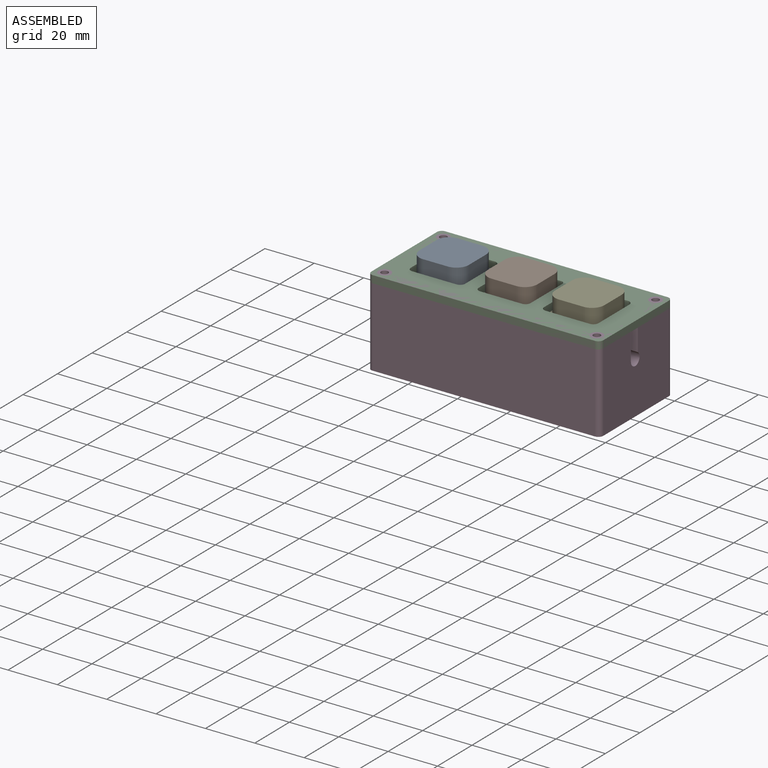
[diagram: assembled view]
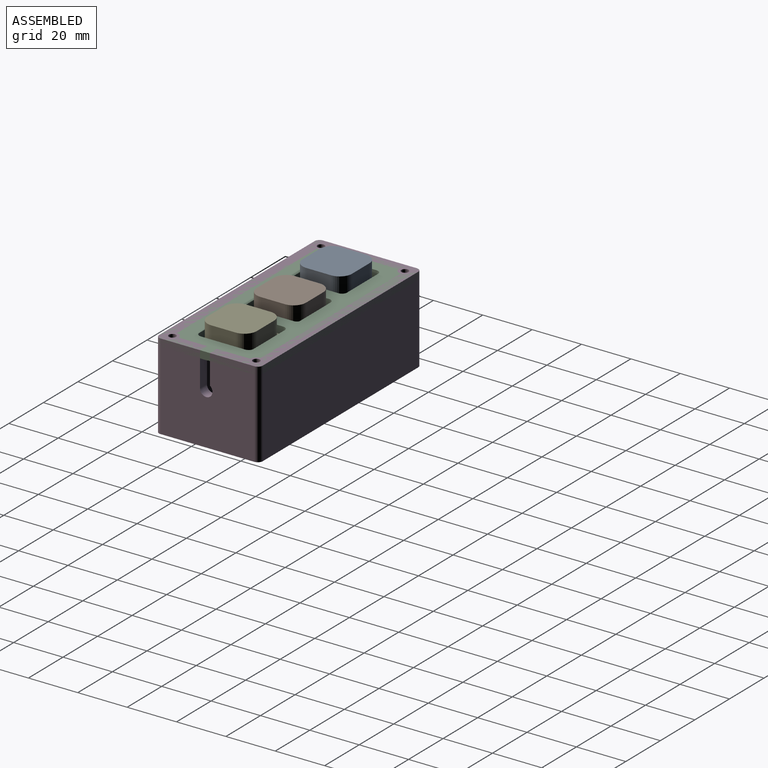
[diagram: assembled view, second angle]
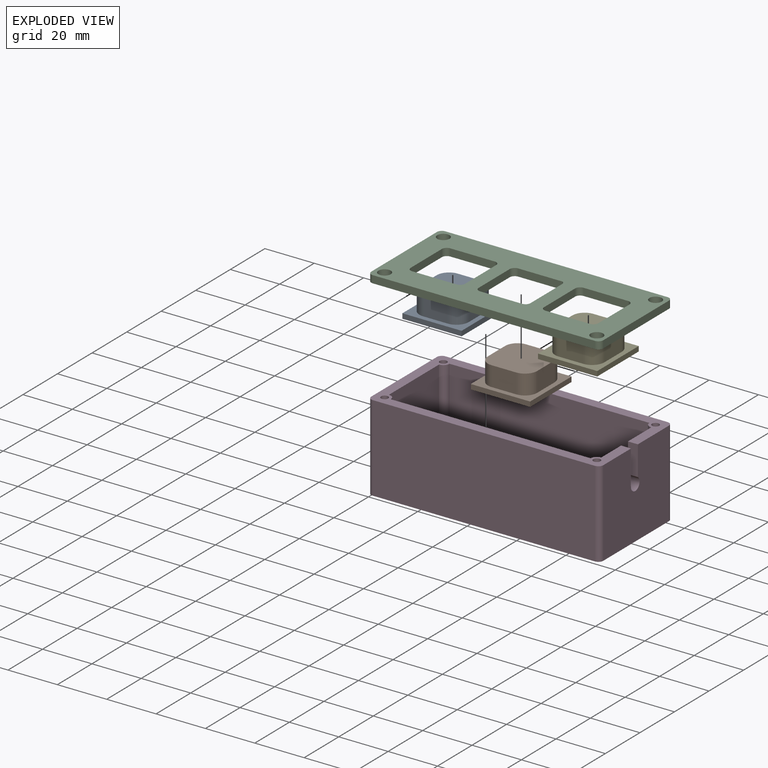
[diagram: exploded view]
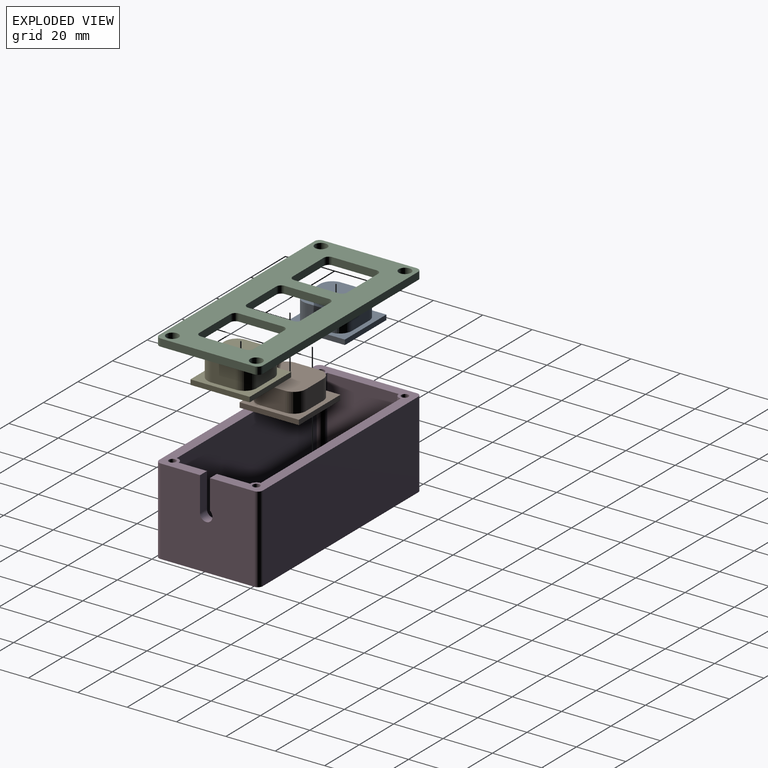
[diagram: exploded view, second angle]
ASSEMBLY  parts=5 mates=4
PART A: 24 faces, bbox 24x24x15 mm
  f0: plane 10x8mm, normal (1,0,0), area 80mm2, adj f4,f9,f17,f19
  f1: plane 10x8mm, normal (0,1,0), area 80mm2, adj f4,f9,f17,f18
  f2: plane 10x8mm, normal (-1,0,0), area 80mm2, adj f4,f9,f16,f18
  f3: plane 10x8mm, normal (0,-1,0), area 80mm2, adj f4,f9,f16,f19
  f4: plane 20x20mm, normal (0,0,1), area 378.5mm2, adj f0,f1,f2,f3,f16,f17,f18,f19
  f5: plane 24x2mm, normal (1,0,0), area 48mm2, adj f6,f8,f9,f10
  f6: plane 24x2mm, normal (0,1,0), area 48mm2, adj f5,f7,f9,f10
  f7: plane 24x2mm, normal (-1,0,0), area 48mm2, adj f6,f8,f9,f10
  f8: plane 24x2mm, normal (0,-1,0), area 48mm2, adj f5,f7,f9,f10
  f9: plane 24x24mm, normal (0,0,1), area 197.5mm2, adj f0,f1,f2,f3,f5,f6,f7,f8
  f10: plane 24x24mm, normal (0,0,-1), area 560.9mm2, adj f5,f6,f7,f8,f11,f12,f13,f14
  f11: plane 5x2mm, normal (1,0,0), area 10mm2, adj f10,f15,f20,f23
  f12: plane 5x2mm, normal (0,1,0), area 10mm2, adj f10,f15,f20,f21
  f13: plane 5x2mm, normal (-1,0,0), area 10mm2, adj f10,f15,f21,f22
  f14: plane 5x2mm, normal (0,-1,0), area 10mm2, adj f10,f15,f22,f23
  f15: plane 4x4mm, normal (0,0,-1), area 15.1mm2, adj f11,f12,f13,f14,f20,f21,f22,f23
  f16: cylinder r=5mm len=8mm, axis (0,0,-1), area 62.8mm2, adj f2,f3,f4,f9
  f17: cylinder r=5mm len=8mm, axis (0,0,-1), area 62.8mm2, adj f0,f1,f4,f9
  f18: cylinder r=5mm len=8mm, axis (0,0,1), area 62.8mm2, adj f1,f2,f4,f9
  f19: cylinder r=5mm len=8mm, axis (0,0,1), area 62.8mm2, adj f0,f3,f4,f9
  f20: cylinder r=1mm len=5mm, axis (0,0,1), area 7.9mm2, adj f10,f11,f12,f15
  f21: cylinder r=1mm len=5mm, axis (0,0,-1), area 7.9mm2, adj f10,f12,f13,f15
  f22: cylinder r=1mm len=5mm, axis (0,0,1), area 7.9mm2, adj f10,f13,f14,f15
  f23: cylinder r=1mm len=5mm, axis (0,0,-1), area 7.9mm2, adj f10,f11,f14,f15
PART B: same geometry as A
PART C: 38 faces, bbox 94x42x3 mm
  f0: cylinder r=2mm len=3mm, axis (0,0,-1), area 9.4mm2, adj f1,f35,f36,f37
  f1: plane 90x3mm, normal (0,1,0), area 270mm2, adj f0,f2,f36,f37
  f2: cylinder r=2mm len=3mm, axis (0,0,-1), area 9.4mm2, adj f1,f3,f36,f37
  f3: plane 38x3mm, normal (-1,0,0), area 114mm2, adj f2,f4,f36,f37
  f4: cylinder r=2mm len=3mm, axis (0,0,-1), area 9.4mm2, adj f3,f5,f36,f37
  f5: plane 90x3mm, normal (0,-1,0), area 270mm2, adj f4,f6,f36,f37
  f6: cylinder r=2mm len=3mm, axis (0,0,-1), area 9.4mm2, adj f5,f35,f36,f37
  f7: plane 18x3mm, normal (0,1,0), area 54mm2, adj f8,f28,f36,f37
  f8: cylinder r=2mm len=3mm, axis (0,0,-1), area 9.4mm2, adj f7,f9,f36,f37
  f9: plane 18x3mm, normal (1,0,0), area 54mm2, adj f8,f10,f36,f37
  f10: cylinder r=2mm len=3mm, axis (0,0,-1), area 9.4mm2, adj f9,f11,f36,f37
  f11: plane 18x3mm, normal (0,-1,0), area 54mm2, adj f10,f12,f36,f37
  f12: cylinder r=2mm len=3mm, axis (0,0,-1), area 9.4mm2, adj f11,f13,f36,f37
  f13: plane 18x3mm, normal (-1,0,0), area 54mm2, adj f12,f28,f36,f37
  f14: plane 18x3mm, normal (0,1,0), area 54mm2, adj f15,f29,f36,f37
  f15: cylinder r=2mm len=3mm, axis (0,0,-1), area 9.4mm2, adj f14,f16,f36,f37
  f16: plane 18x3mm, normal (1,0,0), area 54mm2, adj f15,f17,f36,f37
  f17: cylinder r=2mm len=3mm, axis (0,0,-1), area 9.4mm2, adj f16,f18,f36,f37
  f18: plane 18x3mm, normal (0,-1,0), area 54mm2, adj f17,f19,f36,f37
  f19: cylinder r=2mm len=3mm, axis (0,0,-1), area 9.4mm2, adj f18,f20,f36,f37
  f20: plane 18x3mm, normal (-1,0,0), area 54mm2, adj f19,f29,f36,f37
  f21: plane 17x3mm, normal (0,1,0), area 51mm2, adj f22,f30,f36,f37
  f22: cylinder r=2mm len=3mm, axis (0,0,-1), area 9.4mm2, adj f21,f23,f36,f37
  f23: plane 18x3mm, normal (1,0,0), area 54mm2, adj f22,f24,f36,f37
  f24: cylinder r=2mm len=3mm, axis (0,0,-1), area 9.4mm2, adj f23,f25,f36,f37
  f25: plane 18x3mm, normal (0,-1,0), area 54mm2, adj f24,f26,f36,f37
  f26: cylinder r=2mm len=3mm, axis (0,0,-1), area 6.3mm2, adj f25,f27,f36,f37
  f27: plane 18.27x3mm, normal (-1,0,0), area 54.8mm2, adj f26,f30,f36,f37
  f28: cylinder r=2mm len=3mm, axis (0,0,-1), area 9.4mm2, adj f7,f13,f36,f37
  f29: cylinder r=2mm len=3mm, axis (0,0,-1), area 9.4mm2, adj f14,f20,f36,f37
  f30: cylinder r=2mm len=3mm, axis (0,0,-1), area 9.4mm2, adj f21,f27,f36,f37
  f31: cylinder r=2.5mm len=5mm, axis (0,0,-1), area 47.1mm2, adj f36,f37
  f32: cylinder r=2.5mm len=5mm, axis (0,0,-1), area 47.1mm2, adj f36,f37
  f33: cylinder r=2.5mm len=5mm, axis (0,0,-1), area 47.1mm2, adj f36,f37
  f34: cylinder r=2.5mm len=5mm, axis (0,0,-1), area 47.1mm2, adj f36,f37
  f35: plane 38x3mm, normal (1,0,0), area 114mm2, adj f0,f6,f36,f37
  f36: plane 94x42mm, normal (0,0,1), area 2446mm2, adj f0,f1,f2,f3,f4,f5,f6,f7
  f37: plane 94x42mm, normal (0,0,-1), area 2446mm2, adj f0,f1,f2,f3,f4,f5,f6,f7
PART D: 39 faces, bbox 102.7x42x35 mm
  f0: plane 30x29mm, normal (-1,0,0), area 802.8mm2, adj f1,f9,f19,f22,f27,f28,f29
  f1: plane 94x42mm, normal (0,0,1), area 997.8mm2, adj f0,f2,f3,f4,f5,f6,f7,f8
  f2: cylinder r=2mm len=35mm, axis (0,0,-1), area 110mm2, adj f1,f3,f18,f21
  f3: plane 90x35mm, normal (0,1,0), area 3150mm2, adj f1,f2,f4,f21
  f4: cylinder r=2mm len=35mm, axis (0,0,-1), area 110mm2, adj f1,f3,f5,f21
  f5: plane 38x35mm, normal (-1,0,0), area 1266.1mm2, adj f1,f4,f6,f21,f32,f33,f34,f35
  f6: cylinder r=2mm len=35mm, axis (0,0,-1), area 110mm2, adj f1,f5,f7,f21
  f7: plane 90x35mm, normal (0,-1,0), area 3150mm2, adj f1,f6,f8,f21
  f8: cylinder r=2mm len=35mm, axis (0,0,-1), area 110mm2, adj f1,f7,f18,f21
  f9: cylinder r=2.5mm len=30mm, axis (0,0,-1), area 117.8mm2, adj f0,f1,f10,f22
  f10: plane 81x30mm, normal (0,1,0), area 2430mm2, adj f1,f9,f11,f22
  f11: cylinder r=2.5mm len=30mm, axis (0,0,-1), area 117.8mm2, adj f1,f10,f12,f22
  f12: plane 30x29mm, normal (1,0,0), area 870mm2, adj f1,f11,f13,f22
  f13: cylinder r=2.5mm len=30mm, axis (0,0,-1), area 117.8mm2, adj f1,f12,f14,f22
  f14: plane 81x30mm, normal (0,-1,0), area 2430mm2, adj f1,f13,f19,f22
  f15: cylinder r=1.45mm len=30mm, axis (0,0,-1), area 273.3mm2, adj f1,f24
  f16: cylinder r=1.45mm len=30mm, axis (0,0,-1), area 273.3mm2, adj f1,f23
  f17: cylinder r=1.45mm len=30mm, axis (0,0,-1), area 273.3mm2, adj f1,f26
  f18: plane 38x35mm, normal (1,0,0), area 1262.8mm2, adj f1,f2,f8,f21,f27,f28,f29
  f19: cylinder r=2.5mm len=30mm, axis (0,0,-1), area 117.8mm2, adj f0,f1,f14,f22
  f20: cylinder r=1.45mm len=30mm, axis (0,0,-1), area 273.3mm2, adj f1,f25
  f21: plane 102x42mm, normal (0,0,-1), area 3995.3mm2, adj f2,f3,f4,f5,f6,f7,f8,f18
  f22: plane 86x34mm, normal (0,0,1), area 2904.4mm2, adj f0,f9,f10,f11,f12,f13,f14,f19
  f23: plane 2.9x2.9mm, normal (0,0,1), area 6.6mm2, adj f16
  f24: plane 2.9x2.9mm, normal (0,0,1), area 6.6mm2, adj f15
  f25: plane 2.9x2.9mm, normal (0,0,1), area 6.6mm2, adj f20
  f26: plane 2.9x2.9mm, normal (0,0,1), area 6.6mm2, adj f17
  f27: cylinder r=2.5mm len=5mm, axis (1,0,0), area 40.7mm2, adj f0,f18,f28,f29
  f28: plane 14x4mm, normal (0,1,0), area 56mm2, adj f0,f1,f18,f27
  f29: plane 12x4mm, normal (0,-1,0), area 48mm2, adj f0,f1,f18,f27
  f30: cylinder r=8mm len=14.77mm, axis (0,0,-1), area 10.4mm2, adj f21,f32,f33,f36,f37,f38
  f31: cylinder r=6mm len=11.76mm, axis (0,0,-1), area 41.7mm2, adj f21,f34,f35,f36,f37,f38
  f32: cylinder r=5mm len=4.62mm, axis (0,0,-1), area 20.1mm2, adj f5,f21,f30,f36
  f33: cylinder r=5mm len=4.62mm, axis (0,0,-1), area 20.1mm2, adj f5,f21,f30,f37
  f34: plane 4.5x1.2mm, normal (-0.63,0.77,0), area 6mm2, adj f5,f21,f31,f36
  f35: plane 4.5x1.2mm, normal (-0.63,-0.77,0), area 6mm2, adj f5,f21,f31,f37
  f36: plane 7.12x4.02mm, normal (-0.71,0,0.71), area 11.8mm2, adj f5,f30,f31,f32,f34,f38
  f37: plane 7.12x4.02mm, normal (-0.71,0,0.71), area 11.8mm2, adj f5,f30,f31,f33,f35,f38
  f38: torus R=6mm, axis (0,0,1), area 54.2mm2, adj f30,f31,f36,f37
PART E: same geometry as A
PLACE A t=(-48.23,14.86,1.05)mm
PLACE B t=(-20.85,15.37,1.05)mm
PLACE C t=(-22.9,-6.19,3.05)mm fixed
PLACE D t=(-20.9,-6.19,-28.95)mm
PLACE E t=(6.77,14.78,1.05)mm
MATE planar B.f9 <-> C.f37  axis (0,0,1) through (-20.85,15.37,3.05)mm
MATE fastened C.f33 <-> D.f17  axis (0,0,1) through (22.1,31.81,6.05)mm
MATE planar A.f9 <-> C.f37  axis (0,0,1) through (-48.23,14.86,3.05)mm
MATE planar E.f9 <-> C.f37  axis (0,0,1) through (-5.23,26.78,3.05)mm
